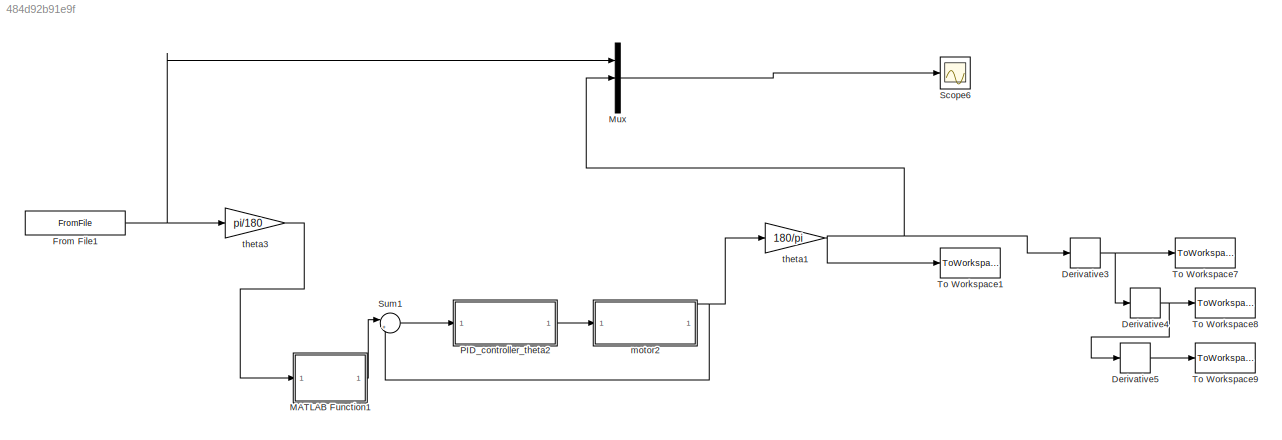
MODEL slx_484d92b91e9f
KIND model
CONFIG AbsTol = auto
CONFIG EnableMultiTasking = off
CONFIG FixedStep = 0.061194
CONFIG MaxStep = auto
CONFIG MinStep = auto
CONFIG RelTol = 1e-3
CONFIG SampleTimeConstraint = Unconstrained
CONFIG SolverName = ode5
CONFIG StartTime = 0.0
CONFIG StopTime = 2.4478
BLOCK [Derivative] Derivative3
BLOCK [Derivative] Derivative4
BLOCK [Derivative] Derivative5
BLOCK [FromFile] From File1
  FileName = theta2set.mat
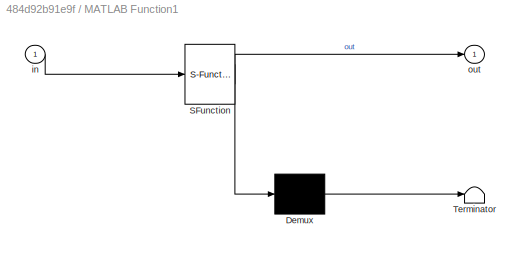
BLOCK [SubSystem] MATLAB Function1
  ErrorFcn = Stateflow.Translate.translate
  PermitHierarchicalResolution = ExplicitOnly
  Ports = [1, 1]
  RequestExecContextInheritance = off
  SFBlockType = MATLAB Function
  TreatAsAtomicUnit = on
BLOCK [Demux] MATLAB Function1/ Demux 
  Outputs = 1
  Ports = [1, 1]
BLOCK [S-Function] MATLAB Function1/ SFunction 
  EnableBusSupport = on
  FunctionName = sf_sfun
  PortCounts = [1 2]
  Ports = [1, 2]
  SFcnIsStateOwnerBlock = off
  SFunctionDeploymentMode = off
  Tag = Stateflow S-Function 1
BLOCK [Terminator] MATLAB Function1/ Terminator 
BLOCK [Inport] MATLAB Function1/in
BLOCK [Outport] MATLAB Function1/out
  VectorParamsAs1DForOutWhenUnconnected = off
BLOCK [Mux] Mux
  DisplayOption = bar
  Inputs = 3
  Ports = [3, 1]
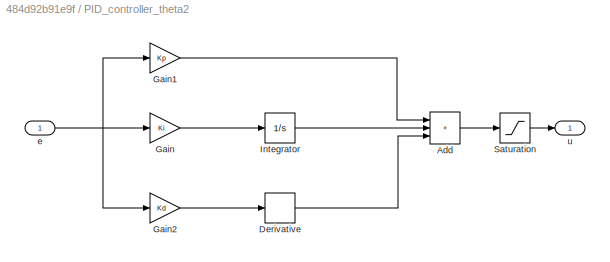
BLOCK [SubSystem] PID_controller_theta2
  Ports = [1, 1]
  RequestExecContextInheritance = off
BLOCK [Sum] PID_controller_theta2/Add
  IconShape = rectangular
  Inputs = +++
  Ports = [3, 1]
BLOCK [Derivative] PID_controller_theta2/Derivative
BLOCK [Gain] PID_controller_theta2/Gain
  Gain = Ki
BLOCK [Gain] PID_controller_theta2/Gain1
  Gain = Kp
BLOCK [Gain] PID_controller_theta2/Gain2
  Gain = Kd
BLOCK [Integrator] PID_controller_theta2/Integrator
  Ports = [1, 1]
BLOCK [Saturate] PID_controller_theta2/Saturation
  LowerLimit = -300
  UpperLimit = 300
BLOCK [Inport] PID_controller_theta2/e
BLOCK [Outport] PID_controller_theta2/u
  VectorParamsAs1DForOutWhenUnconnected = off
BLOCK [Scope] Scope6
  Floating = off
  NumInputPorts = 1
  Ports = [1]
  ScopeSpecificationString = Simulink.scopes.TimeScopeBlockCfg('CurrentConfiguration', extmgr.ConfigurationSet(extmgr.Configuration('Core','General UI',true),extmgr.Configuration('Core','Source UI',true),extmgr.Configuration('Sources','WiredSimulink',true,'DataLoggingVariableName','ScopeData2'),extmgr.Configuration('Visuals','Time Domain',true,'SerializedDisplays',{struct('MinYLimReal','-644.57752','MaxYLimReal','5801.19768',...<+1803ch>
BLOCK [Sum] Sum1
  Inputs = |+-
  Ports = [2, 1]
BLOCK [ToWorkspace] To Workspace1
  FixptAsFi = on
  MaxDataPoints = inf
  Ports = [1]
  SampleTime = -1
  VariableName = q_theta2out
BLOCK [ToWorkspace] To Workspace7
  FixptAsFi = on
  MaxDataPoints = inf
  Ports = [1]
  SampleTime = -1
  VariableName = v_theta2out
BLOCK [ToWorkspace] To Workspace8
  FixptAsFi = on
  MaxDataPoints = inf
  Ports = [1]
  SampleTime = -1
  VariableName = a_theta2out
BLOCK [ToWorkspace] To Workspace9
  FixptAsFi = on
  MaxDataPoints = inf
  Ports = [1]
  SampleTime = -1
  VariableName = j_theta2out
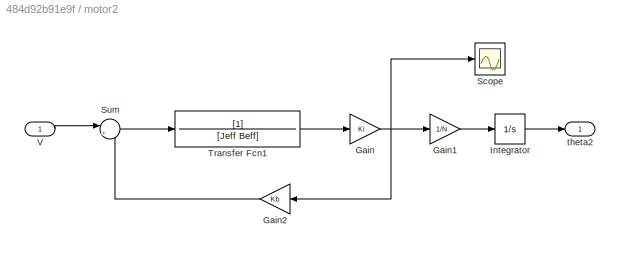
BLOCK [SubSystem] motor2
  Ports = [1, 1]
  RequestExecContextInheritance = off
BLOCK [Gain] motor2/Gain
  Gain = Ki
BLOCK [Gain] motor2/Gain1
  Gain = 1/N
BLOCK [Gain] motor2/Gain2
  Gain = Kb
BLOCK [Integrator] motor2/Integrator
  InitialCondition = 90
  Ports = [1, 1]
BLOCK [Scope] motor2/Scope
  Floating = off
  NumInputPorts = 1
  Ports = [1]
  ScopeSpecificationString = Simulink.scopes.TimeScopeBlockCfg('CurrentConfiguration', extmgr.ConfigurationSet(extmgr.Configuration('Core','General UI',true),extmgr.Configuration('Core','Source UI',true),extmgr.Configuration('Sources','WiredSimulink',true,'DataLoggingVariableName','ScopeData2'),extmgr.Configuration('Visuals','Time Domain',true,'SerializedDisplays',{struct('MinYLimReal','-5.44626','MaxYLimReal','1.36751','YLab...<+1363ch>
BLOCK [Sum] motor2/Sum
  Inputs = |+-
  Ports = [2, 1]
BLOCK [TransferFcn] motor2/Transfer Fcn1
  Denominator = [Jeff Beff]
BLOCK [Inport] motor2/V
BLOCK [Outport] motor2/theta2
  VectorParamsAs1DForOutWhenUnconnected = off
BLOCK [Gain] theta1
  Gain = 180/pi
BLOCK [Gain] theta3
  Gain = pi/180
NET Derivative3:1 -> Derivative4:1, To Workspace7:1
NET Derivative4:1 -> Derivative5:1, To Workspace8:1
LINE Derivative5:1 -> To Workspace9:1
NET From File1:1 -> Mux:1, theta3:1
LINE MATLAB Function1:1 -> Sum1:1
LINE Mux:1 -> Scope6:1
LINE PID_controller_theta2/Add:1 -> PID_controller_theta2/Saturation:1
LINE PID_controller_theta2/Derivative:1 -> PID_controller_theta2/Add:3
LINE PID_controller_theta2/Gain1:1 -> PID_controller_theta2/Add:1
LINE PID_controller_theta2/Gain2:1 -> PID_controller_theta2/Derivative:1
LINE PID_controller_theta2/Gain:1 -> PID_controller_theta2/Integrator:1
LINE PID_controller_theta2/Integrator:1 -> PID_controller_theta2/Add:2
LINE PID_controller_theta2/Saturation:1 -> PID_controller_theta2/u:1
NET PID_controller_theta2/e:1 -> PID_controller_theta2/Gain1:1, PID_controller_theta2/Gain2:1, PID_controller_theta2/Gain:1
LINE PID_controller_theta2:1 -> motor2:1
LINE Sum1:1 -> PID_controller_theta2:1
LINE motor2/Gain1:1 -> motor2/Integrator:1
LINE motor2/Gain2:1 -> motor2/Sum:2
NET motor2/Gain:1 -> motor2/Gain1:1, motor2/Gain2:1, motor2/Scope:1
LINE motor2/Integrator:1 -> motor2/theta2:1
LINE motor2/Sum:1 -> motor2/Transfer Fcn1:1
LINE motor2/Transfer Fcn1:1 -> motor2/Gain:1
LINE motor2/V:1 -> motor2/Sum:1
NET motor2:1 -> Sum1:2, theta1:1
NET theta1:1 -> Derivative3:1, Mux:2, To Workspace1:1
LINE theta3:1 -> MATLAB Function1:1
note: NET lines group one-source signal fan-out (src -> all destinations, sorted); 1:1 wires keep LINE
CHART MATLAB Function1 states=1 transitions=1
  STATE_LABEL 'eML_blk_kernel()'
  STATE_LABEL 'SCRIPT:\nfunction out = HandleInput(in)\n\nout = in\npersistent pre\nif isempty(pre)\n    pre = 0;\nend\n\nwhile (out - pre > 1.5*pi)\n    out = out - 2*pi;\nend\n\nwhile (out - pre < -1.5*pi)\n    out = out + 2*pi;\nend'
CHART  states=0 transitions=0
